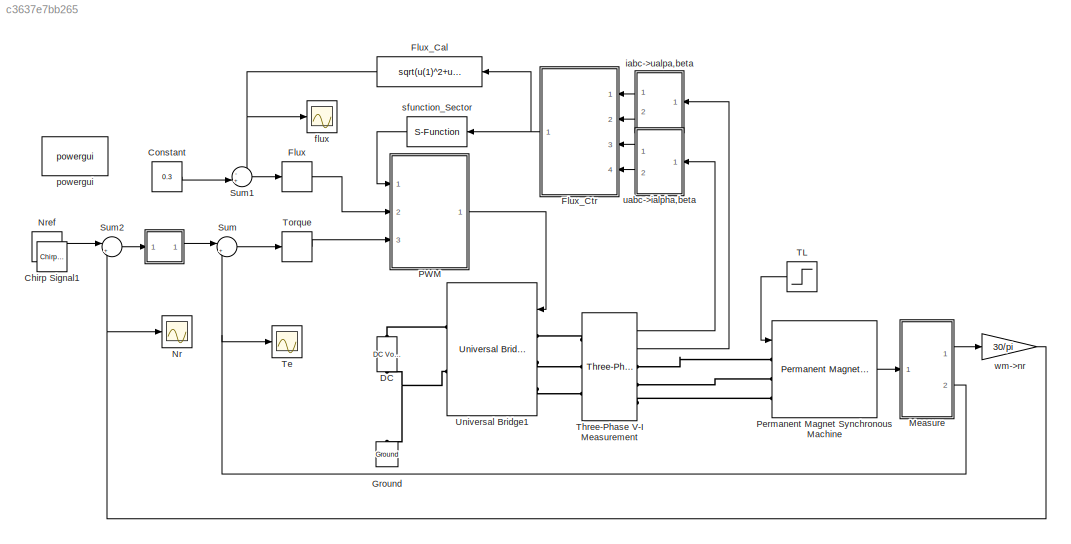
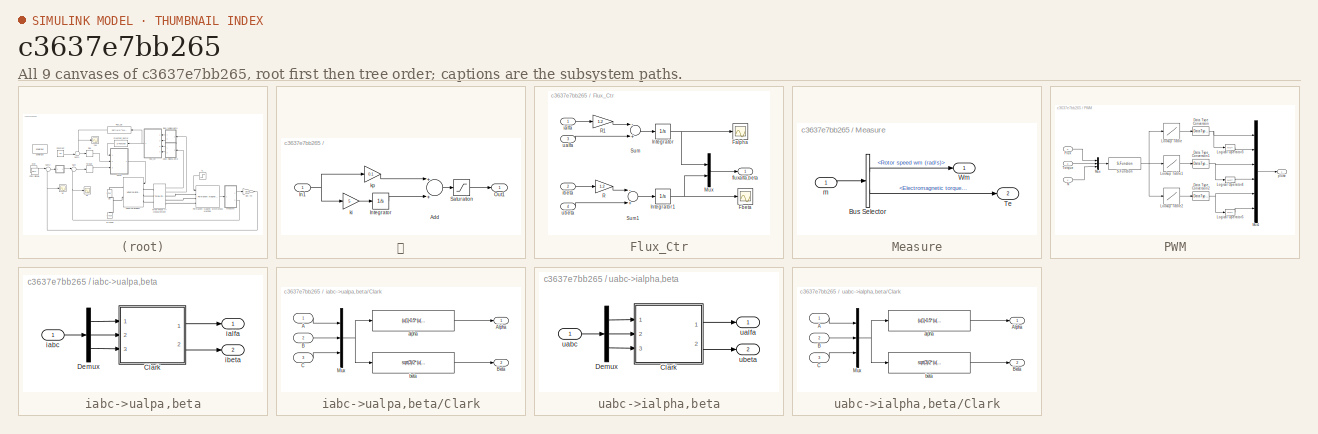
[diagram: thumbnail index - all 9 canvases of the model, root first then tree order]
MODEL slx_c3637e7bb265
KIND model
BLOCK [SubSystem] 	
  Ports = [1, 1]
  RequestExecContextInheritance = off
BLOCK [Sum] 	/Add
  InputSameDT = off
  OutDataTypeStr = Inherit: Inherit via internal rule
  Ports = [2, 1]
  SaturateOnIntegerOverflow = off
BLOCK [Inport] 	/In1
  IconDisplay = Port number
BLOCK [Integrator] 	/Integrator
  Ports = [1, 1]
BLOCK [Outport] 	/Out1
  IconDisplay = Port number
BLOCK [Saturate] 	/Saturation
  InputPortMap = u0
  LinearizeAsGain = off
  LowerLimit = -5
  Ports = [1, 1]
  UpperLimit = 5
BLOCK [Gain] 	/ki
  Gain = 5
  OutDataTypeStr = Inherit: Inherit via internal rule
  ParamDataTypeStr = Inherit: Inherit via internal rule
  SaturateOnIntegerOverflow = off
BLOCK [Gain] 	/kp
  Gain = 0.1
  OutDataTypeStr = Inherit: Inherit via internal rule
  ParamDataTypeStr = Inherit: Inherit via internal rule
  SaturateOnIntegerOverflow = off
BLOCK [Reference] Chirp Signal1  REF=simulink/Sources/Chirp Signal
  IOType = siggen
  Ports = [0, 1]
  SourceBlock = simulink/Sources/Chirp Signal
  SourceType = chirp
  T = 100
  VectorParams1D = on
  f1 = 0.1
  f2 = 1
BLOCK [Constant] Constant
  Value = 0.3
BLOCK [Reference] DC  REF=powerlib/Electrical
Sources/DC Voltage Source
  Amplitude = 311
  Measurements = None
  Ports = [0, 0, 0, 0, 0, 1, 1]
  SourceBlock = powerlib/Electrical\nSources/DC Voltage Source
  SourceType = DC Voltage Source
BLOCK [Relay] Flux
  OffSwitchValue = -0.002
  OnSwitchValue = 0.002
BLOCK [Fcn] Flux_Cal
  Expr = sqrt(u(1)^2+u(2)^2)
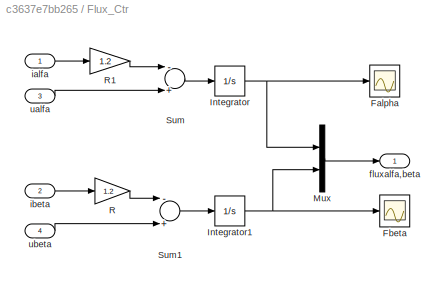
BLOCK [SubSystem] Flux_Ctr
  Ports = [4, 1]
  RequestExecContextInheritance = off
BLOCK [Scope] Flux_Ctr/Falpha
  Floating = off
  LimitDataPoints = off
  NumInputPorts = 1
  Ports = [1]
  SampleInput = on
  SampleTime = 0
  SaveName = Falpha
  SaveToWorkspace = on
  ShowLegends = off
  TimeRange = 0.3
  YMax = 0.4
  YMin = -0.4
  ZoomMode = yonly
BLOCK [Scope] Flux_Ctr/Fbeta
  Floating = off
  LimitDataPoints = off
  NumInputPorts = 1
  Ports = [1]
  SampleInput = on
  SampleTime = 0
  SaveName = Fbeta
  SaveToWorkspace = on
  ShowLegends = off
  TimeRange = 0.3
  YMax = 900
  YMin = -100
  ZoomMode = yonly
BLOCK [Integrator] Flux_Ctr/Integrator
  Ports = [1, 1]
BLOCK [Integrator] Flux_Ctr/Integrator1
  Ports = [1, 1]
BLOCK [Mux] Flux_Ctr/Mux
  DisplayOption = bar
  Inputs = 2
  Ports = [2, 1]
BLOCK [Gain] Flux_Ctr/R
  Gain = 1.2
  OutDataTypeStr = Inherit: Inherit via internal rule
  ParamDataTypeStr = Inherit: Inherit via internal rule
  SaturateOnIntegerOverflow = off
BLOCK [Gain] Flux_Ctr/R1
  Gain = 1.2
  OutDataTypeStr = Inherit: Inherit via internal rule
  ParamDataTypeStr = Inherit: Inherit via internal rule
  SaturateOnIntegerOverflow = off
BLOCK [Sum] Flux_Ctr/Sum
  InputSameDT = off
  Inputs = -+
  OutDataTypeStr = Inherit: Inherit via internal rule
  Ports = [2, 1]
  SaturateOnIntegerOverflow = off
BLOCK [Sum] Flux_Ctr/Sum1
  InputSameDT = off
  Inputs = -+
  OutDataTypeStr = Inherit: Inherit via internal rule
  Ports = [2, 1]
  SaturateOnIntegerOverflow = off
BLOCK [Outport] Flux_Ctr/fluxalfa,beta
  IconDisplay = Port number
BLOCK [Inport] Flux_Ctr/ialfa
  IconDisplay = Port number
BLOCK [Inport] Flux_Ctr/ibeta
  IconDisplay = Port number
  Port = 2
BLOCK [Inport] Flux_Ctr/ualfa
  IconDisplay = Port number
  Port = 3
BLOCK [Inport] Flux_Ctr/ubeta
  IconDisplay = Port number
  Port = 4
BLOCK [Reference] Ground  REF=powerlib/Elements/Ground
  LConnTagsString = a
  Ports = [0, 0, 0, 0, 0, 1]
  SourceBlock = powerlib/Elements/Ground
  SourceType = Ground
BLOCK [SubSystem] Measure
  Ports = [1, 2]
  RequestExecContextInheritance = off
BLOCK [BusSelector] Measure/Bus Selector
  OutputSignals = Rotor speed wm (rad/s),Electromagnetic torque Te (N*m)
  Ports = [1, 2]
BLOCK [Outport] Measure/Te
  IconDisplay = Port number
  Port = 2
BLOCK [Outport] Measure/Wm
  IconDisplay = Port number
BLOCK [Inport] Measure/m
  IconDisplay = Port number
BLOCK [Scope] Nr
  DataFormat = StructureWithTime
  Floating = off
  LimitDataPoints = off
  NumInputPorts = 1
  Ports = [1]
  SampleInput = on
  SampleTime = 0
  SaveName = wm
  SaveToWorkspace = on
  ShowLegends = off
  TimeRange = 0.3
  YMax = 620
  YMin = 595
  ZoomMode = yonly
BLOCK [Constant] Nref
  Value = 600
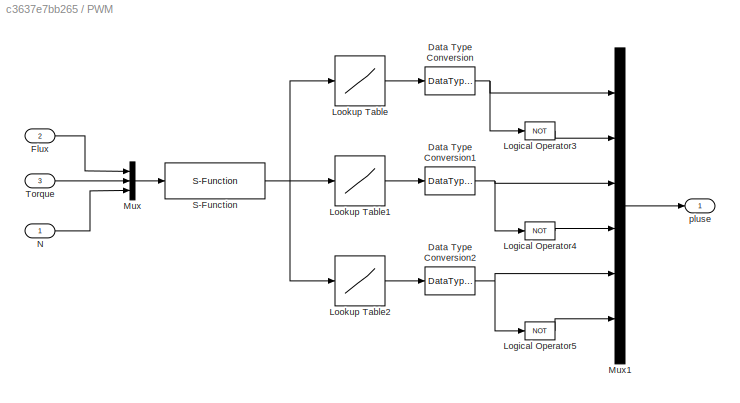
BLOCK [SubSystem] PWM
  Ports = [3, 1]
  RequestExecContextInheritance = off
BLOCK [DataTypeConversion] PWM/Data Type Conversion
  OutDataTypeStr = boolean
  RndMeth = Floor
  SaturateOnIntegerOverflow = off
BLOCK [DataTypeConversion] PWM/Data Type Conversion1
  OutDataTypeStr = boolean
  RndMeth = Floor
  SaturateOnIntegerOverflow = off
BLOCK [DataTypeConversion] PWM/Data Type Conversion2
  OutDataTypeStr = boolean
  RndMeth = Floor
  SaturateOnIntegerOverflow = off
BLOCK [Inport] PWM/Flux
  IconDisplay = Port number
  Port = 2
BLOCK [Logic] PWM/Logical Operator3
  AllPortsSameDT = off
  Operator = NOT
  OutDataTypeStr = boolean
  Ports = [1, 1]
BLOCK [Logic] PWM/Logical Operator4
  AllPortsSameDT = off
  Operator = NOT
  OutDataTypeStr = boolean
  Ports = [1, 1]
BLOCK [Logic] PWM/Logical Operator5
  AllPortsSameDT = off
  Operator = NOT
  OutDataTypeStr = boolean
  Ports = [1, 1]
BLOCK [Lookup] PWM/Lookup Table
  InputValues = [1,2,3,4,5,6]
  SaturateOnIntegerOverflow = off
  Table = [1,1,1,0,0,0]
BLOCK [Lookup] PWM/Lookup Table1
  InputValues = [1,2,3,4,5,6]
  SaturateOnIntegerOverflow = off
  Table = [1,0,0,1,1,0]
BLOCK [Lookup] PWM/Lookup Table2
  InputValues = [1,2,3,4,5,6]
  SaturateOnIntegerOverflow = off
  Table = [0,1,0,1,0,1]
BLOCK [Mux] PWM/Mux
  DisplayOption = bar
  Inputs = 3
  Ports = [3, 1]
BLOCK [Mux] PWM/Mux1
  DisplayOption = bar
  Inputs = 6
  Ports = [6, 1]
BLOCK [Inport] PWM/N
  IconDisplay = Port number
BLOCK [S-Function] PWM/S-Function
  EnableBusSupport = off
  FunctionName = PMSM_switch
  Ports = [1, 1]
BLOCK [Inport] PWM/Torque
  IconDisplay = Port number
  Port = 3
BLOCK [Outport] PWM/pluse
  IconDisplay = Port number
BLOCK [Reference] Permanent Magnet Synchronous Machine  REF=powerlib/Machines/Permanent Magnet
Synchronous Machine
  Flat = 120
  Flux = 0.175
  FluxDistribution = Sinusoidal
  Inductance = 8.5e-3
  InitialConditions = [0,0, 0,0]
  InitialConditions5ph = [0 0 0 0 0 0]
  La = 0.000835
  MachineConstant = Flux linkage established by magnets (V.s)
  MeasurementBus = off
  Mechanical = [0.0008 0 4]
  MechanicalLoad = Torque Tm
  NbPhases = 3
  PolePairs = 4
  Ports = [1, 1, 0, 0, 0, 3]
  PresetModel = No
  RefAngle = Aligned with phase A axis (original Park)
  Resistance = 1.2
  RotorType = Salient-pole
  ShowDetailedParameters = on
  SourceBlock = powerlib/Machines/Permanent Magnet\nSynchronous Machine
  SourceType = Permanent Magnet Synchronous Machine
  TorqueCst = 1.05
  TsBlock = -1
  TsPowergui = 0
  VoltageCst = 126.966
  dqInductances = [8.5e-3,8.5e-3]
BLOCK [Sum] Sum
  IconShape = round
  InputSameDT = off
  Inputs = |+-
  OutDataTypeStr = Inherit: Inherit via internal rule
  Ports = [2, 1]
  SaturateOnIntegerOverflow = off
BLOCK [Sum] Sum1
  IconShape = round
  InputSameDT = off
  Inputs = -+|
  OutDataTypeStr = Inherit: Inherit via internal rule
  Ports = [2, 1]
  SaturateOnIntegerOverflow = off
BLOCK [Sum] Sum2
  IconShape = round
  InputSameDT = off
  Inputs = |+-
  OutDataTypeStr = Inherit: Inherit via internal rule
  Ports = [2, 1]
  SaturateOnIntegerOverflow = off
BLOCK [Step] TL
  After = 1.5
  SampleTime = 0
  Time = 0.2
BLOCK [Scope] Te
  DataFormat = StructureWithTime
  Floating = off
  LimitDataPoints = off
  NumInputPorts = 1
  Ports = [1]
  SampleInput = on
  SampleTime = 0
  SaveName = Te
  SaveToWorkspace = on
  ShowLegends = off
  YMin = -2
  ZoomMode = xonly
BLOCK [Reference] Three-Phase V-I Measurement  REF=powerlib/Measurements/Three-Phase
V-I Measurement
  CurrentMeasurement = yes
  Ipu = off
  LabelI = Iabc
  LabelV = Vabc
  OutputType = Complex
  PSBequivalent = 0
  Pbase = 100e6
  PhasorSimulation = off
  Ports = [0, 2, 0, 0, 0, 3, 3]
  SetLabelI = off
  SetLabelV = off
  SourceBlock = powerlib/Measurements/Three-Phase\nV-I Measurement
  SourceType = Three-Phase VI Measurement
  Vbase = 500e3
  VoltageMeasurement = phase-to-ground
  Vpu = off
  VpuLL = off
BLOCK [Relay] Torque
  OffSwitchValue = -0.1
  OnSwitchValue = 0.1
BLOCK [Reference] Universal Bridge1  REF=powerlib/Power
Electronics/Universal Bridge
  Arms = 3
  Device = IGBT / Diodes
  ForwardVoltage = 0
  ForwardVoltages = [  0  0  ]
  GTOparameters = [ 10e-6 , 20e-6 ]
  IGBTparameters = [ 1e-6 , 2e-6 ]
  Lon = 0
  Measurements = None
  Measurements_2 = None
  Ports = [1, 0, 0, 0, 0, 3, 2]
  Ron = 1e-3
  SnubberCapacitance = inf
  SnubberResistance = 1e5
  SourceBlock = powerlib/Power\nElectronics/Universal Bridge
  SourceType = Universal Bridge
  converterType = Rectifier
BLOCK [Scope] flux
  DataFormat = StructureWithTime
  Floating = off
  LimitDataPoints = off
  NumInputPorts = 1
  Ports = [1]
  SampleInput = on
  SampleTime = 0
  SaveName = flux
  SaveToWorkspace = on
  ShowLegends = off
  TimeRange = 0.3
  YMax = 900
  YMin = -100
  ZoomMode = yonly
BLOCK [SubSystem] iabc->ualpa,beta
  Ports = [1, 2]
  RequestExecContextInheritance = off
BLOCK [SubSystem] iabc->ualpa,beta/Clark
  Ports = [3, 2]
  RequestExecContextInheritance = off
BLOCK [Inport] iabc->ualpa,beta/Clark/A
  IconDisplay = Port number
BLOCK [Outport] iabc->ualpa,beta/Clark/Alpha
  IconDisplay = Port number
BLOCK [Inport] iabc->ualpa,beta/Clark/B
  IconDisplay = Port number
  Port = 2
BLOCK [Outport] iabc->ualpa,beta/Clark/Beta
  IconDisplay = Port number
  Port = 2
BLOCK [Inport] iabc->ualpa,beta/Clark/C
  IconDisplay = Port number
  Port = 3
BLOCK [Mux] iabc->ualpa,beta/Clark/Mux
  DisplayOption = bar
  Inputs = 3
  Ports = [3, 1]
BLOCK [Fcn] iabc->ualpa,beta/Clark/alpha
  Expr = (u(1)-0.5*(u(2)+u(3)))*2/3
BLOCK [Fcn] iabc->ualpa,beta/Clark/beta
  Expr = sqrt(3)/2*(u(2)-u(3))*2/3
BLOCK [Demux] iabc->ualpa,beta/Demux
  DisplayOption = bar
  Outputs = 3
  Ports = [1, 3]
BLOCK [Inport] iabc->ualpa,beta/iabc
  IconDisplay = Port number
BLOCK [Outport] iabc->ualpa,beta/ialfa
  IconDisplay = Port number
BLOCK [Outport] iabc->ualpa,beta/ibeta
  IconDisplay = Port number
  Port = 2
BLOCK [Reference] powergui  REF=powerlib/powergui
  DisableRonSwitches = off
  DisableSnubberDevices = off
  DisableVfSwitches = off
  DisplayEquations = off
  DisplayStyle = 1
  EnableUseOfTLC = off
  ErrMax = 1e-4
  Frange = [0:2:500]
  FreqAxis = off
  FunctionMessages = off
  HookPort = off
  Interpol = off
  Iterations = 50
  MaxFrequency = 1000
  Pbase = 100e6
  Ports = []
  Priority = 1
  ResistiveCurrentMeasurement = off
  RestoreLinks = warning
  RmsSteady = 1
  SPID = off
  SampleTime = 50e-6
  ShowGrid = off
  SolverType = Tustin/Backward Euler (TBE)
  SourceBlock = powerlib/powergui
  SourceType = PSB option menu block
  StartTime = 0.0
  SwTol = 0
  Ts = 100
  UnitsV = kV
  UnitsW = MW
  UserDataPersistent = on
  Xlog = on
  Ylog = off
  ZoomFFT = off
  cycles = 1
  display = off
  echomessages = off
  frequency = 60
  frequencyindice = 0
  frequencyindicesteady = 1
  fundamental = 60
  methode = off
  save = off
  structure = 0
  variable = ZData
  x0status = blocks
BLOCK [S-Function] sfunction_Sector
  EnableBusSupport = off
  FunctionName = sector
  Ports = [1, 1]
BLOCK [SubSystem] uabc->ialpha,beta
  Ports = [1, 2]
  RequestExecContextInheritance = off
BLOCK [SubSystem] uabc->ialpha,beta/Clark
  Ports = [3, 2]
  RequestExecContextInheritance = off
BLOCK [Inport] uabc->ialpha,beta/Clark/A
  IconDisplay = Port number
BLOCK [Outport] uabc->ialpha,beta/Clark/Alpha
  IconDisplay = Port number
BLOCK [Inport] uabc->ialpha,beta/Clark/B
  IconDisplay = Port number
  Port = 2
BLOCK [Outport] uabc->ialpha,beta/Clark/Beta
  IconDisplay = Port number
  Port = 2
BLOCK [Inport] uabc->ialpha,beta/Clark/C
  IconDisplay = Port number
  Port = 3
BLOCK [Mux] uabc->ialpha,beta/Clark/Mux
  DisplayOption = bar
  Inputs = 3
  Ports = [3, 1]
BLOCK [Fcn] uabc->ialpha,beta/Clark/alpha
  Expr = (u(1)-0.5*(u(2)+u(3)))*2/3
BLOCK [Fcn] uabc->ialpha,beta/Clark/beta
  Expr = sqrt(3)/2*(u(2)-u(3))*2/3
BLOCK [Demux] uabc->ialpha,beta/Demux
  DisplayOption = bar
  Outputs = 3
  Ports = [1, 3]
BLOCK [Inport] uabc->ialpha,beta/uabc
  IconDisplay = Port number
BLOCK [Outport] uabc->ialpha,beta/ualfa
  IconDisplay = Port number
BLOCK [Outport] uabc->ialpha,beta/ubeta
  IconDisplay = Port number
  Port = 2
BLOCK [Gain] wm->nr
  Gain = 30/pi
  OutDataTypeStr = Inherit: Inherit via internal rule
  ParamDataTypeStr = Inherit: Inherit via internal rule
  SaturateOnIntegerOverflow = off
LINE 	/Add:1 -> 	/Saturation:1
NET 	/In1:1 -> 	/ki:1, 	/kp:1
LINE 	/Integrator:1 -> 	/Add:2
LINE 	/Saturation:1 -> 	/Out1:1
LINE 	/ki:1 -> 	/Integrator:1
LINE 	/kp:1 -> 	/Add:1
LINE 	:1 -> Sum:1
LINE Constant:1 -> Sum1:2
LINE Flux:1 -> PWM:2
NET Flux_Cal:1 -> Sum1:1, flux:1
NET Flux_Ctr/Integrator1:1 -> Flux_Ctr/Fbeta:1, Flux_Ctr/Mux:2
NET Flux_Ctr/Integrator:1 -> Flux_Ctr/Falpha:1, Flux_Ctr/Mux:1
LINE Flux_Ctr/Mux:1 -> Flux_Ctr/fluxalfa,beta:1
LINE Flux_Ctr/R1:1 -> Flux_Ctr/Sum:1
LINE Flux_Ctr/R:1 -> Flux_Ctr/Sum1:1
LINE Flux_Ctr/Sum1:1 -> Flux_Ctr/Integrator1:1
LINE Flux_Ctr/Sum:1 -> Flux_Ctr/Integrator:1
LINE Flux_Ctr/ialfa:1 -> Flux_Ctr/R1:1
LINE Flux_Ctr/ibeta:1 -> Flux_Ctr/R:1
LINE Flux_Ctr/ualfa:1 -> Flux_Ctr/Sum:2
LINE Flux_Ctr/ubeta:1 -> Flux_Ctr/Sum1:2
NET Flux_Ctr:1 -> Flux_Cal:1, sfunction_Sector:1
LINE Measure/Bus Selector:1 -> Measure/Wm:1
LINE Measure/Bus Selector:2 -> Measure/Te:1
LINE Measure/m:1 -> Measure/Bus Selector:1
LINE Measure:1 -> wm->nr:1
NET Measure:2 -> Sum:2, Te:1
LINE Nref:1 -> Sum2:1
NET PWM/Data Type Conversion1:1 -> PWM/Logical Operator4:1, PWM/Mux1:3
NET PWM/Data Type Conversion2:1 -> PWM/Logical Operator5:1, PWM/Mux1:5
NET PWM/Data Type Conversion:1 -> PWM/Logical Operator3:1, PWM/Mux1:1
LINE PWM/Flux:1 -> PWM/Mux:1
LINE PWM/Logical Operator3:1 -> PWM/Mux1:2
LINE PWM/Logical Operator4:1 -> PWM/Mux1:4
LINE PWM/Logical Operator5:1 -> PWM/Mux1:6
LINE PWM/Lookup Table1:1 -> PWM/Data Type Conversion1:1
LINE PWM/Lookup Table2:1 -> PWM/Data Type Conversion2:1
LINE PWM/Lookup Table:1 -> PWM/Data Type Conversion:1
LINE PWM/Mux1:1 -> PWM/pluse:1
LINE PWM/Mux:1 -> PWM/S-Function:1
LINE PWM/N:1 -> PWM/Mux:3
NET PWM/S-Function:1 -> PWM/Lookup Table1:1, PWM/Lookup Table2:1, PWM/Lookup Table:1
LINE PWM/Torque:1 -> PWM/Mux:2
LINE PWM:1 -> Universal Bridge1:1
LINE Permanent Magnet Synchronous Machine:1 -> Measure:1
LINE Sum1:1 -> Flux:1
LINE Sum2:1 -> 	:1
LINE Sum:1 -> Torque:1
LINE TL:1 -> Permanent Magnet Synchronous Machine:1
LINE Three-Phase V-I Measurement:1 -> uabc->ialpha,beta:1
LINE Three-Phase V-I Measurement:2 -> iabc->ualpa,beta:1
LINE Torque:1 -> PWM:3
LINE iabc->ualpa,beta/Clark/A:1 -> iabc->ualpa,beta/Clark/Mux:1
LINE iabc->ualpa,beta/Clark/B:1 -> iabc->ualpa,beta/Clark/Mux:2
LINE iabc->ualpa,beta/Clark/C:1 -> iabc->ualpa,beta/Clark/Mux:3
NET iabc->ualpa,beta/Clark/Mux:1 -> iabc->ualpa,beta/Clark/alpha:1, iabc->ualpa,beta/Clark/beta:1
LINE iabc->ualpa,beta/Clark/alpha:1 -> iabc->ualpa,beta/Clark/Alpha:1
LINE iabc->ualpa,beta/Clark/beta:1 -> iabc->ualpa,beta/Clark/Beta:1
LINE iabc->ualpa,beta/Clark:1 -> iabc->ualpa,beta/ialfa:1
LINE iabc->ualpa,beta/Clark:2 -> iabc->ualpa,beta/ibeta:1
LINE iabc->ualpa,beta/Demux:1 -> iabc->ualpa,beta/Clark:1
LINE iabc->ualpa,beta/Demux:2 -> iabc->ualpa,beta/Clark:2
LINE iabc->ualpa,beta/Demux:3 -> iabc->ualpa,beta/Clark:3
LINE iabc->ualpa,beta/iabc:1 -> iabc->ualpa,beta/Demux:1
LINE iabc->ualpa,beta:1 -> Flux_Ctr:1
LINE iabc->ualpa,beta:2 -> Flux_Ctr:2
LINE sfunction_Sector:1 -> PWM:1
LINE uabc->ialpha,beta/Clark/A:1 -> uabc->ialpha,beta/Clark/Mux:1
LINE uabc->ialpha,beta/Clark/B:1 -> uabc->ialpha,beta/Clark/Mux:2
LINE uabc->ialpha,beta/Clark/C:1 -> uabc->ialpha,beta/Clark/Mux:3
NET uabc->ialpha,beta/Clark/Mux:1 -> uabc->ialpha,beta/Clark/alpha:1, uabc->ialpha,beta/Clark/beta:1
LINE uabc->ialpha,beta/Clark/alpha:1 -> uabc->ialpha,beta/Clark/Alpha:1
LINE uabc->ialpha,beta/Clark/beta:1 -> uabc->ialpha,beta/Clark/Beta:1
LINE uabc->ialpha,beta/Clark:1 -> uabc->ialpha,beta/ualfa:1
LINE uabc->ialpha,beta/Clark:2 -> uabc->ialpha,beta/ubeta:1
LINE uabc->ialpha,beta/Demux:1 -> uabc->ialpha,beta/Clark:1
LINE uabc->ialpha,beta/Demux:2 -> uabc->ialpha,beta/Clark:2
LINE uabc->ialpha,beta/Demux:3 -> uabc->ialpha,beta/Clark:3
LINE uabc->ialpha,beta/uabc:1 -> uabc->ialpha,beta/Demux:1
LINE uabc->ialpha,beta:1 -> Flux_Ctr:3
LINE uabc->ialpha,beta:2 -> Flux_Ctr:4
NET wm->nr:1 -> Nr:1, Sum2:2
PNET net1: DC:LConn1 -- Ground:LConn1 -- Universal Bridge1:RConn2
PLINE DC:RConn1 -- Universal Bridge1:RConn1
PLINE Permanent Magnet Synchronous Machine:LConn1 -- Three-Phase V-I Measurement:RConn1
PLINE Permanent Magnet Synchronous Machine:LConn2 -- Three-Phase V-I Measurement:RConn2
PLINE Permanent Magnet Synchronous Machine:LConn3 -- Three-Phase V-I Measurement:RConn3
PLINE Three-Phase V-I Measurement:LConn1 -- Universal Bridge1:LConn1
PLINE Three-Phase V-I Measurement:LConn2 -- Universal Bridge1:LConn2
PLINE Three-Phase V-I Measurement:LConn3 -- Universal Bridge1:LConn3
note: NET lines group one-source signal fan-out (src -> all destinations, sorted); 1:1 wires keep LINE; PNET lines group multi-terminal physical nets as a canonical sorted terminal list (undirected conserving connections); 2-terminal nets keep the pairwise PLINE form
